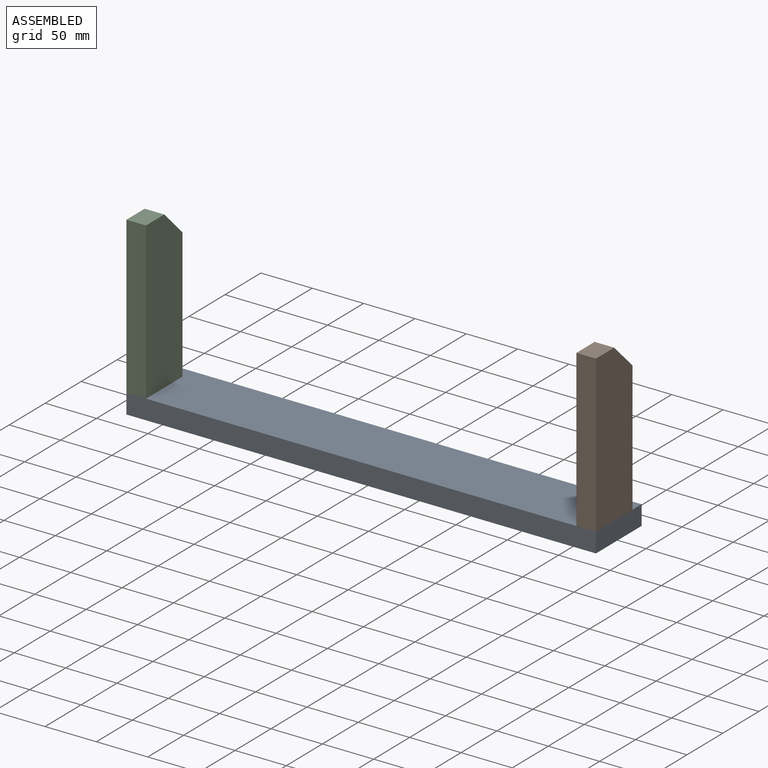
[diagram: assembled view]
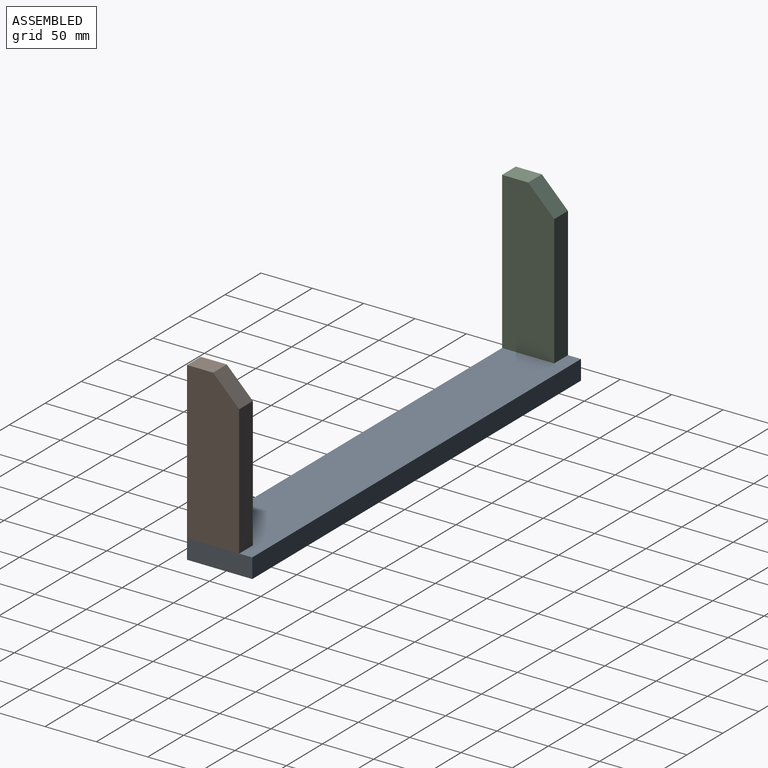
[diagram: assembled view, second angle]
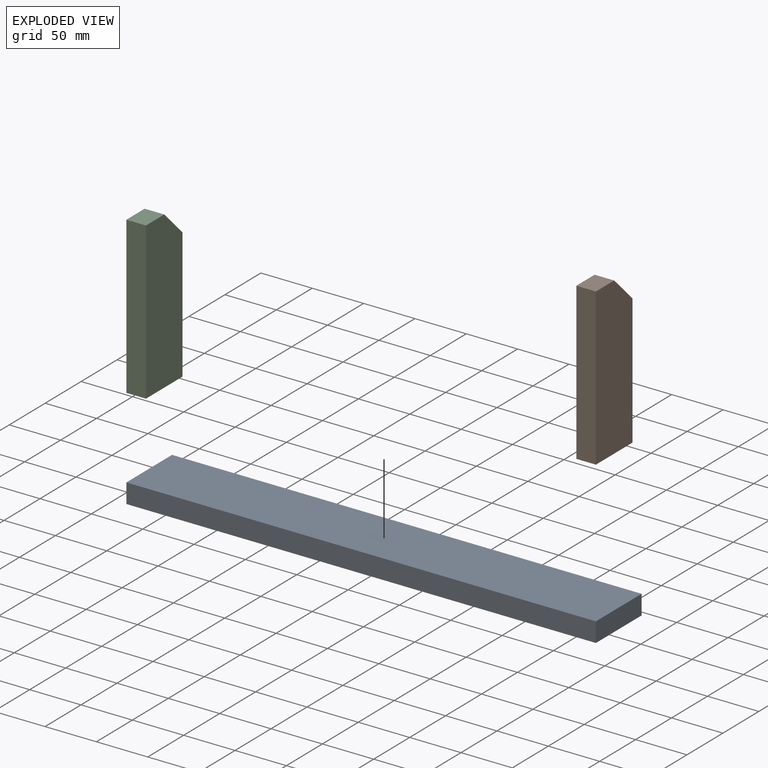
[diagram: exploded view]
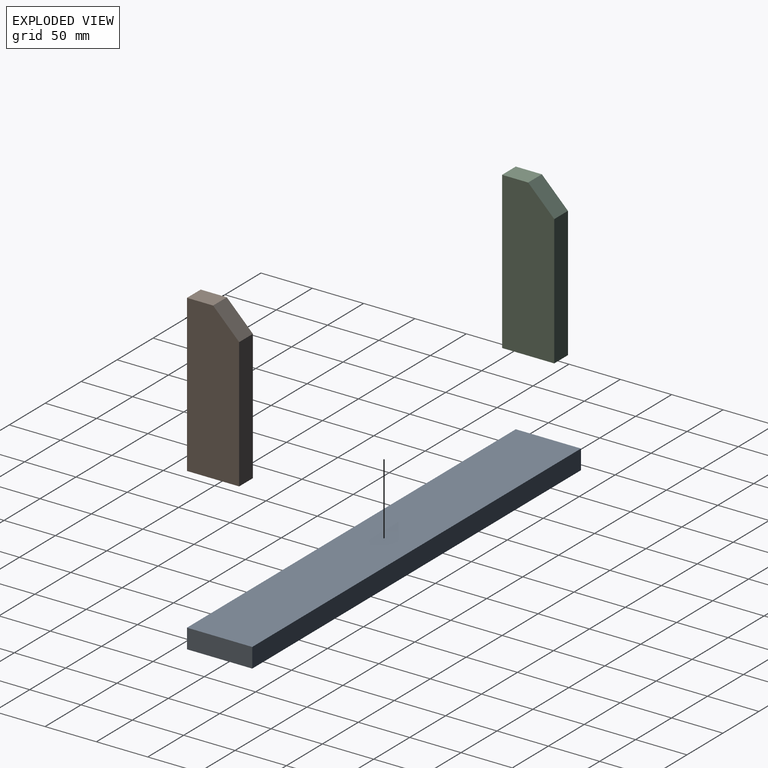
[diagram: exploded view, second angle]
ASSEMBLY  parts=3 mates=2
PART A: 6 faces, bbox 457.2x63.5x19.1 mm
  f0: plane 457.2x19.05mm, normal (0,1,0), area 8709.7mm2, adj f1,f3,f4,f5
  f1: plane 63.5x19.05mm, normal (-1,0,0), area 1209.7mm2, adj f0,f2,f4,f5
  f2: plane 457.2x19.05mm, normal (0,-1,0), area 8709.7mm2, adj f1,f3,f4,f5
  f3: plane 63.5x19.05mm, normal (1,0,0), area 1209.7mm2, adj f0,f2,f4,f5
  f4: plane 457.2x63.5mm, normal (0,0,1), area 29032.2mm2, adj f0,f1,f2,f3
  f5: plane 457.2x63.5mm, normal (0,0,-1), area 29032.2mm2, adj f0,f1,f2,f3
PART B: 7 faces, bbox 152.4x50.8x19.1 mm
  f0: plane 127x19.05mm, normal (0,1,0), area 2419.3mm2, adj f1,f4,f5,f6
  f1: plane 50.8x19.05mm, normal (-1,0,0), area 967.7mm2, adj f0,f2,f4,f5
  f2: plane 152.4x19.05mm, normal (0,-1,0), area 2903.2mm2, adj f1,f3,f4,f5
  f3: plane 25.4x19.05mm, normal (1,0,0), area 483.9mm2, adj f2,f4,f5,f6
  f4: plane 152.4x50.8mm, normal (0,0,1), area 7419.3mm2, adj f0,f1,f2,f3,f6
  f5: plane 152.4x50.8mm, normal (0,0,-1), area 7419.3mm2, adj f0,f1,f2,f3,f6
  f6: plane 25.4x25.4mm, normal (0.71,0.71,0), area 684.3mm2, adj f0,f3,f4,f5
PART C: same geometry as B
PLACE A t=(0,0,-19.05)mm
PLACE B rot(axis=(0,-1,0),90deg) t=(228.6,-6.35,76.2)mm
PLACE C rot(axis=(0,-1,0),90deg) t=(-209.55,-6.35,76.2)mm
MATE fastened A.f4 <-> C.f1  axis (0,0,1) through (-228.6,-31.75,0)mm
MATE fastened A.f4 <-> B.f1  axis (0,0,1) through (228.6,-31.75,0)mm
